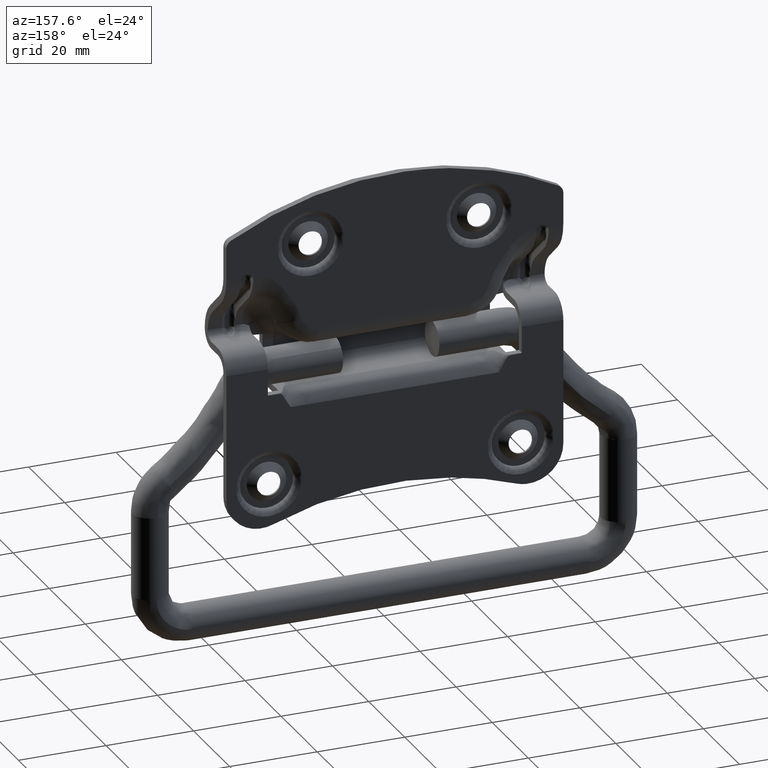
[diagram: clean part render]
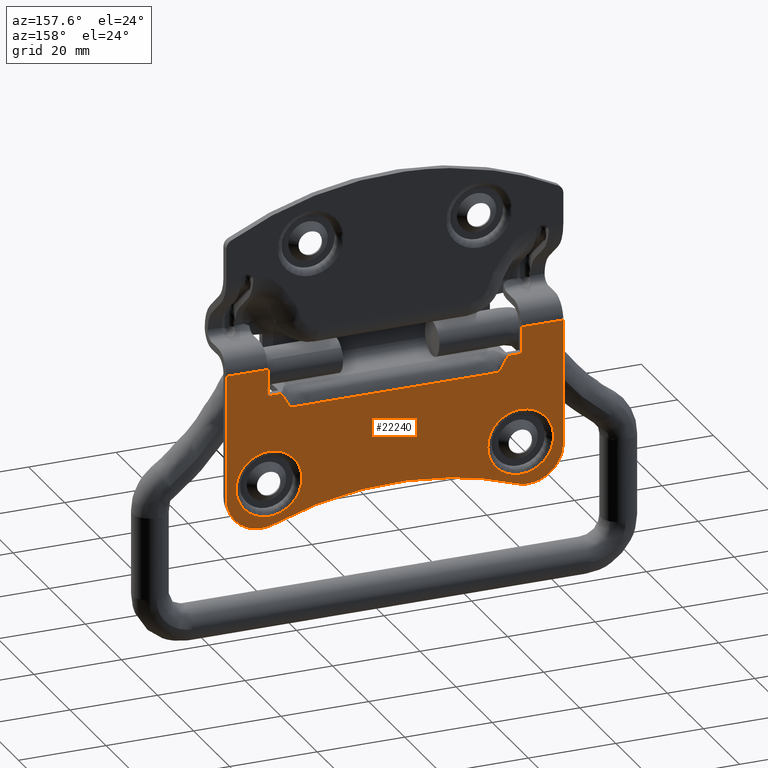
[diagram: same view with one face highlighted and labeled with its STEP entity id]
A machine part, auxiliary view. The second image highlights one B-rep face of the part: STEP entity #22240.
In plain terms, the highlighted face is a freeform B-spline surface patch.
Its self-contained STEP definition (entity closure, byte-faithful):
#4261=CARTESIAN_POINT('',(-28.750000000000000,6.0,-32.000029999973449));
#4262=VERTEX_POINT('',#4261);
#4276=CARTESIAN_POINT('',(-36.231761525775703,5.999999999999808,-23.977030684949021));
#4277=VERTEX_POINT('',#4276);
#4278=CARTESIAN_POINT('',(-36.231761525775703,5.999999999999808,-23.977030684949021));
#4279=CARTESIAN_POINT('',(-36.263082759697852,5.999999999999825,-24.424527059326810));
#4280=CARTESIAN_POINT('',(-36.244445821056559,5.999999999999869,-25.357330128161710));
#4281=CARTESIAN_POINT('',(-35.941974974816709,5.999999999999907,-26.806906684699861));
#4282=CARTESIAN_POINT('',(-35.336866421985427,5.999999999999979,-28.195796853410069));
#4283=CARTESIAN_POINT('',(-34.462777312640590,5.999999999999957,-29.430729025844521));
#4284=CARTESIAN_POINT('',(-33.275813230109883,6.000000000000033,-30.565028134264580));
#4285=CARTESIAN_POINT('',(-31.910390252663319,6.000000000000096,-31.368544313479031));
#4286=CARTESIAN_POINT('',(-30.320033566989530,5.999999999999976,-31.884849359418549));
#4287=CARTESIAN_POINT('',(-29.326775914187500,6.000000000000078,-32.000146859764207));
#4288=CARTESIAN_POINT('',(-28.750000000000000,6.0,-32.000029999973449));
#4289=B_SPLINE_CURVE_WITH_KNOTS('',3,(#4278,#4279,#4280,#4281,#4282,#4283,#4284,#4285,#4286,#4287,#4288),.UNSPECIFIED.,.F.,.U.,(4,1,1,1,1,1,1,1,4),(0.000000218852133,1.345783324052526,2.787739642078753,4.421938080797934,5.863874082181320,7.305799456925008,9.324512484175186,10.574197937775139,12.304508785203801),.UNSPECIFIED.);
#4290=EDGE_CURVE('',#4277,#4262,#4289,.T.);
#4344=CARTESIAN_POINT('',(-28.750000000000000,6.0,-17.000030000026751));
#4345=VERTEX_POINT('',#4344);
#4346=CARTESIAN_POINT('',(-28.750000000000000,6.0,-17.000030000026751));
#4347=CARTESIAN_POINT('',(-29.336347993741541,6.000000000000011,-16.999881083610958));
#4348=CARTESIAN_POINT('',(-30.274401195437630,6.000000000000023,-17.110645771171079));
#4349=CARTESIAN_POINT('',(-31.620014099196950,6.000000000000033,-17.534137053884159));
#4350=CARTESIAN_POINT('',(-32.986013161273263,6.000000000000019,-18.226042704927181));
#4351=CARTESIAN_POINT('',(-34.317965261099353,6.000000000000015,-19.356236792104720));
#4352=CARTESIAN_POINT('',(-35.219964065831448,5.999999999999941,-20.633273218265860));
#4353=CARTESIAN_POINT('',(-35.927991547618277,5.999999999999909,-22.117656679155729));
#4354=CARTESIAN_POINT('',(-36.177030175980221,5.999999999999798,-23.187302018356210));
#4355=CARTESIAN_POINT('',(-36.231761525775703,5.999999999999808,-23.977030684949021));
#4356=B_SPLINE_CURVE_WITH_KNOTS('',3,(#4346,#4347,#4348,#4349,#4350,#4351,#4352,#4353,#4354,#4355),.UNSPECIFIED.,.F.,.U.,(4,1,1,1,1,1,1,4),(0.000000173651824,1.759002009603417,2.814412123837954,4.221618650322420,6.332412982515165,8.003467889978049,8.882992041034262,11.257639861299900),.UNSPECIFIED.);
#4357=EDGE_CURVE('',#4345,#4277,#4356,.T.);
#4646=CARTESIAN_POINT('',(36.247651418014613,6.0,-24.688505716384871));
#4647=VERTEX_POINT('',#4646);
#4658=CARTESIAN_POINT('',(28.750019999999999,6.0,-32.000030000000002));
#4659=VERTEX_POINT('',#4658);
#4660=CARTESIAN_POINT('',(28.750019999999999,6.0,-32.000030000000002));
#4661=CARTESIAN_POINT('',(29.595377844100600,6.000000000000012,-32.000539120415873));
#4662=CARTESIAN_POINT('',(30.893127554381682,5.999999999999995,-31.778247069367321));
#4663=CARTESIAN_POINT('',(32.354255267488732,6.000000000000005,-31.110115845464779));
#4664=CARTESIAN_POINT('',(33.341124230766347,5.999999999999979,-30.464133472098659));
#4665=CARTESIAN_POINT('',(34.248596106821260,6.000000000000042,-29.660954408055819));
#4666=CARTESIAN_POINT('',(35.147120984265030,5.999999999999965,-28.515484698787390));
#4667=CARTESIAN_POINT('',(35.969378192812073,6.000000000000028,-26.855515643156050));
#4668=CARTESIAN_POINT('',(36.227640728038068,6.000000000000012,-25.503419561167181));
#4669=CARTESIAN_POINT('',(36.247651418014613,6.0,-24.688505716384871));
#4670=B_SPLINE_CURVE_WITH_KNOTS('',3,(#4660,#4661,#4662,#4663,#4664,#4665,#4666,#4667,#4668,#4669),.UNSPECIFIED.,.F.,.U.,(4,1,1,1,1,1,1,4),(0.000000187617758,2.535863842113862,3.894392608118473,4.800046047331625,6.067955246704566,7.517037633210008,9.147248327258165,11.592547319279671),.UNSPECIFIED.);
#4671=EDGE_CURVE('',#4659,#4647,#4670,.T.);
#4673=CARTESIAN_POINT('',(21.252388581985389,6.0,-24.311554283615120));
#4674=VERTEX_POINT('',#4673);
#4675=CARTESIAN_POINT('',(21.252388581985389,6.0,-24.311554283615120));
#4676=CARTESIAN_POINT('',(21.233242492185230,5.999999999999995,-25.059440484748411));
#4677=CARTESIAN_POINT('',(21.386447104039028,6.0,-26.279107687934669));
#4678=CARTESIAN_POINT('',(21.994124621527462,5.999999999999994,-27.856733593156960));
#4679=CARTESIAN_POINT('',(22.736036685185571,5.999999999999992,-29.054365045424870));
#4680=CARTESIAN_POINT('',(23.603134171890169,6.000000000000032,-30.000769226812189));
#4681=CARTESIAN_POINT('',(24.683157625516110,5.999999999999978,-30.851319776623381));
#4682=CARTESIAN_POINT('',(25.931057156539939,6.000000000000009,-31.511004428271651));
#4683=CARTESIAN_POINT('',(27.378525404138639,6.000000000000010,-31.918217816820139));
#4684=CARTESIAN_POINT('',(28.313637917872569,6.000000000000004,-32.000060157990681));
#4685=CARTESIAN_POINT('',(28.750019999999999,6.0,-32.000030000000002));
#4686=B_SPLINE_CURVE_WITH_KNOTS('',3,(#4675,#4676,#4677,#4678,#4679,#4680,#4681,#4682,#4683,#4684,#4685),.UNSPECIFIED.,.F.,.U.,(4,1,1,1,1,1,1,1,4),(0.000000205011037,2.244275398807469,3.646979510950663,5.049700503621686,6.452287151815727,7.480933202780568,9.164186246023647,10.660387728751660,11.969545536098581),.UNSPECIFIED.);
#4687=EDGE_CURVE('',#4674,#4659,#4686,.T.);
#4741=CARTESIAN_POINT('',(28.750019999999999,6.0,-17.000029999999999));
#4742=VERTEX_POINT('',#4741);
#4743=CARTESIAN_POINT('',(28.750019999999999,6.0,-17.000029999999999));
#4744=CARTESIAN_POINT('',(27.904680488305271,6.000000000000001,-16.999471965923441));
#4745=CARTESIAN_POINT('',(26.395576473500320,6.000000000000008,-17.257979314535039));
#4746=CARTESIAN_POINT('',(24.577246155610720,5.999999999999990,-18.183937517897618));
#4747=CARTESIAN_POINT('',(23.122739582745229,6.000000000000021,-19.425004771998239));
#4748=CARTESIAN_POINT('',(22.152161033645040,5.999999999999998,-20.793554782625179));
#4749=CARTESIAN_POINT('',(21.454180527788889,5.999999999999988,-22.504884478811441));
#4750=CARTESIAN_POINT('',(21.269556444782239,6.000000000000013,-23.617397746376810));
#4751=CARTESIAN_POINT('',(21.252388581985389,6.0,-24.311554283615120));
#4752=B_SPLINE_CURVE_WITH_KNOTS('',3,(#4743,#4744,#4745,#4746,#4747,#4748,#4749,#4750,#4751),.UNSPECIFIED.,.F.,.U.,(4,1,1,1,1,1,4),(0.000000187613782,2.535863842111125,4.528349309333586,6.067955246704117,8.241572758009664,9.509530786447426,11.592547319279680),.UNSPECIFIED.);
#4753=EDGE_CURVE('',#4742,#4674,#4752,.T.);
#4755=CARTESIAN_POINT('',(36.247651418014613,6.0,-24.688505716384871));
#4756=CARTESIAN_POINT('',(36.267657639263582,6.000000000000005,-23.909458083305509));
#4757=CARTESIAN_POINT('',(36.086008125182907,5.999999999999989,-22.533192962467009));
#4758=CARTESIAN_POINT('',(35.418039547706947,6.000000000000011,-20.975310721411361));
#4759=CARTESIAN_POINT('',(34.658217058007921,5.999999999999979,-19.830306976029650));
#4760=CARTESIAN_POINT('',(33.812340432199562,6.000000000000047,-18.906912154454581));
#4761=CARTESIAN_POINT('',(32.734243513355857,5.999999999999861,-18.100711765384808));
#4762=CARTESIAN_POINT('',(31.645473280507399,6.000000000000117,-17.551030762049539));
#4763=CARTESIAN_POINT('',(30.339634463691290,5.999999999999901,-17.121247914412908));
#4764=CARTESIAN_POINT('',(29.373448867204150,5.999999999999900,-16.999848210107750));
#4765=CARTESIAN_POINT('',(28.750019999999999,6.0,-17.000029999999999));
#4766=B_SPLINE_CURVE_WITH_KNOTS('',3,(#4755,#4756,#4757,#4758,#4759,#4760,#4761,#4762,#4763,#4764,#4765),.UNSPECIFIED.,.F.,.U.,(4,1,1,1,1,1,1,1,4),(0.000000205018226,2.337798783234126,4.114535634555417,5.049700503625429,6.452287151818477,7.855003900158999,9.070672761463479,10.099314503404459,11.969545536098551),.UNSPECIFIED.);
#4767=EDGE_CURVE('',#4647,#4742,#4766,.T.);
#12750=CARTESIAN_POINT('',(-21.249980000000949,6.0,-24.500026221275519));
#12751=VERTEX_POINT('',#12750);
#12752=CARTESIAN_POINT('',(-21.249980000000949,6.0,-24.500026221275519));
#12753=CARTESIAN_POINT('',(-21.249425796568659,6.000000000000008,-23.640908860642391));
#12754=CARTESIAN_POINT('',(-21.479181277843011,5.999999999999994,-22.322126353500028));
#12755=CARTESIAN_POINT('',(-22.272508720764549,6.000000000000002,-20.618274436180830));
#12756=CARTESIAN_POINT('',(-23.136670876564320,6.000000000000027,-19.453010573939299));
#12757=CARTESIAN_POINT('',(-24.163475382440009,6.000000000000029,-18.522536065310561));
#12758=CARTESIAN_POINT('',(-25.432518780511991,5.999999999999955,-17.707645107643270));
#12759=CARTESIAN_POINT('',(-26.970579584150990,5.999999999999989,-17.136076447010499));
#12760=CARTESIAN_POINT('',(-28.197776638650680,6.000000000000015,-16.999948190131491));
#12761=CARTESIAN_POINT('',(-28.750000000000000,6.0,-17.000030000026751));
#12762=B_SPLINE_CURVE_WITH_KNOTS('',3,(#12752,#12753,#12754,#12755,#12756,#12757,#12758,#12759,#12760,#12761),.UNSPECIFIED.,.F.,.U.,(4,1,1,1,1,1,1,4),(0.000000200217093,2.577097102431605,3.957716069159019,5.614427927751733,6.902956634403551,8.099471567823155,10.124373008234270,11.781055514205850),.UNSPECIFIED.);
#12763=EDGE_CURVE('',#12751,#4345,#12762,.T.);
#12765=CARTESIAN_POINT('',(-28.750000000000000,6.0,-32.000029999973449));
#12766=CARTESIAN_POINT('',(-28.197763598254639,6.000000000000007,-32.000143166057292));
#12767=CARTESIAN_POINT('',(-27.308109188962948,5.999999999999979,-31.901283507728699));
#12768=CARTESIAN_POINT('',(-25.981518579651890,6.000000000000006,-31.507741190272700));
#12769=CARTESIAN_POINT('',(-24.623880871657668,6.000000000000009,-30.845387791517130));
#12770=CARTESIAN_POINT('',(-23.211879170594401,5.999999999999965,-29.686559440366540));
#12771=CARTESIAN_POINT('',(-22.061876194771489,6.000000000000057,-28.074919229214579));
#12772=CARTESIAN_POINT('',(-21.393696856048049,5.999999999999941,-26.310078375038021));
#12773=CARTESIAN_POINT('',(-21.249882688572139,6.000000000000036,-25.082946572765039));
#12774=CARTESIAN_POINT('',(-21.249980000000949,6.0,-24.500026221275519));
#12775=B_SPLINE_CURVE_WITH_KNOTS('',3,(#12765,#12766,#12767,#12768,#12769,#12770,#12771,#12772,#12773,#12774),.UNSPECIFIED.,.F.,.U.,(4,1,1,1,1,1,1,4),(0.000000198906942,1.656686601683164,2.669144442584553,4.141780964994140,6.166629071708793,8.099474497975033,10.032313522556761,11.781059773727231),.UNSPECIFIED.);
#12776=EDGE_CURVE('',#4262,#12751,#12775,.T.);
#12826=CARTESIAN_POINT('',(-38.500020000000013,6.0,-26.500002749313250));
#12827=VERTEX_POINT('',#12826);
#12833=CARTESIAN_POINT('',(-27.727289090909100,6.0,-34.004132499375700));
#12834=VERTEX_POINT('',#12833);
#12835=CARTESIAN_POINT('',(-38.500020000000013,6.0,-26.500002749313250));
#12836=CARTESIAN_POINT('',(-38.500527420852940,5.999999999999993,-27.342145161482119));
#12837=CARTESIAN_POINT('',(-38.314674832071418,6.000000000000017,-28.504689306252541));
#12838=CARTESIAN_POINT('',(-37.739372919681678,5.999999999999985,-29.961950639822341));
#12839=CARTESIAN_POINT('',(-37.149153438087332,6.000000000000036,-31.014087228298809));
#12840=CARTESIAN_POINT('',(-36.241581277502888,5.999999999999974,-32.144195982849872));
#12841=CARTESIAN_POINT('',(-35.068370748433694,6.000000000000004,-33.129680058612841));
#12842=CARTESIAN_POINT('',(-33.833839828174924,5.999999999999996,-33.809109451221317));
#12843=CARTESIAN_POINT('',(-32.472367455969163,6.000000000000008,-34.298914376921289));
#12844=CARTESIAN_POINT('',(-31.158735119207360,5.999999999999996,-34.517433806938470));
#12845=CARTESIAN_POINT('',(-29.470897869406169,6.000000000000001,-34.491055071588271));
#12846=CARTESIAN_POINT('',(-28.404251248346711,6.000000000000008,-34.254556372365592));
#12847=CARTESIAN_POINT('',(-27.727289090909100,6.0,-34.004132499375700));
#12848=B_SPLINE_CURVE_WITH_KNOTS('',3,(#12835,#12836,#12837,#12838,#12839,#12840,#12841,#12842,#12843,#12844,#12845,#12846,#12847),.UNSPECIFIED.,.F.,.U.,(4,1,1,1,1,1,1,1,1,1,4),(0.000000235993637,2.526206468395088,3.488607522378587,4.691587421873129,6.135187083194786,7.819248272761627,9.262804219189018,10.345501862483649,12.149993554162380,13.232690039245179,15.397993868483709),.UNSPECIFIED.);
#12849=EDGE_CURVE('',#12827,#12834,#12848,.T.);
#12892=CARTESIAN_POINT('',(27.727292727272751,6.0,-34.004119063240303));
#12893=VERTEX_POINT('',#12892);
#12899=CARTESIAN_POINT('',(38.500020000000013,6.0,-26.499987969564302));
#12900=VERTEX_POINT('',#12899);
#12901=CARTESIAN_POINT('',(27.727292727272751,6.0,-34.004119063240303));
#12902=CARTESIAN_POINT('',(28.329049007024420,5.999999999999992,-34.226620268661691));
#12903=CARTESIAN_POINT('',(29.468566344313292,6.000000000000012,-34.497570978553270));
#12904=CARTESIAN_POINT('',(31.241148097676241,5.999999999999990,-34.525253481561080));
#12905=CARTESIAN_POINT('',(32.745578417572773,6.000000000000007,-34.228258467578861));
#12906=CARTESIAN_POINT('',(34.274933266437152,5.999999999999983,-33.612297079676217));
#12907=CARTESIAN_POINT('',(35.560044993523661,6.000000000000022,-32.773343958804212));
#12908=CARTESIAN_POINT('',(36.893616830796823,5.999999999999990,-31.430657180212808));
#12909=CARTESIAN_POINT('',(37.738988047362767,5.999999999999996,-30.048392559859789));
#12910=CARTESIAN_POINT('',(38.352406043063191,6.000000000000011,-28.304265958592211));
#12911=CARTESIAN_POINT('',(38.500300772723762,6.000000000000006,-27.221785460439879));
#12912=CARTESIAN_POINT('',(38.500020000000013,6.0,-26.499987969564302));
#12913=B_SPLINE_CURVE_WITH_KNOTS('',3,(#12901,#12902,#12903,#12904,#12905,#12906,#12907,#12908,#12909,#12910,#12911,#12912),.UNSPECIFIED.,.F.,.U.,(4,1,1,1,1,1,1,1,1,4),(0.000000235997977,1.924711348136425,3.488606644052585,5.293081316746999,6.496065459038981,8.420754961530296,9.864298383073333,12.149990495143710,13.232686707622319,15.397989991721120),.UNSPECIFIED.);
#12914=EDGE_CURVE('',#12893,#12900,#12913,.T.);
#12970=CARTESIAN_POINT('',(27.727292727272751,6.0,-34.004119063240303));
#12971=CARTESIAN_POINT('',(25.375662466934848,6.0,-33.135194881539398));
#12972=CARTESIAN_POINT('',(19.605485280296360,6.000000000000008,-31.306297034777231));
#12973=CARTESIAN_POINT('',(11.628426152131871,5.999999999999984,-29.742668934910942));
#12974=CARTESIAN_POINT('',(3.690081279616772,6.000000000000030,-29.038557412766760));
#12975=CARTESIAN_POINT('',(-2.804959486753288,5.999999999999943,-29.002630199051211));
#12976=CARTESIAN_POINT('',(-10.456311135482220,6.000000000000078,-29.596130607423799));
#12977=CARTESIAN_POINT('',(-18.746290048763829,6.000000000000014,-31.078709312049849));
#12978=CARTESIAN_POINT('',(-24.822348104607119,5.999999999999932,-32.930696953862501));
#12979=CARTESIAN_POINT('',(-27.727289090909100,6.0,-34.004132499375700));
#12980=B_SPLINE_CURVE_WITH_KNOTS('',3,(#12970,#12971,#12972,#12973,#12974,#12975,#12976,#12977,#12978,#12979),.UNSPECIFIED.,.F.,.U.,(4,1,1,1,1,1,1,4),(6.590987E-009,7.521103593501934,18.139176614473481,24.333051638135409,31.411705034587690,37.605581681501782,47.338814397877137,56.629597378905324),.UNSPECIFIED.);
#12981=EDGE_CURVE('',#12893,#12834,#12980,.T.);
#13156=CARTESIAN_POINT('',(38.500020000000013,6.0,1.999970000000000));
#13157=VERTEX_POINT('',#13156);
#13173=CARTESIAN_POINT('',(28.999980000000001,6.0,1.999970000000000));
#13174=VERTEX_POINT('',#13173);
#13175=CARTESIAN_POINT('',(28.999980000000001,6.0,1.999970000000000));
#13176=CARTESIAN_POINT('',(38.500020000000013,6.0,1.999970000000000));
#13177=QUASI_UNIFORM_CURVE('',1,(#13175,#13176),.UNSPECIFIED.,.F.,.U.);
#13178=EDGE_CURVE('',#13174,#13157,#13177,.T.);
#13219=CARTESIAN_POINT('',(-38.500020000000013,6.0,1.999970000000000));
#13220=VERTEX_POINT('',#13219);
#13241=CARTESIAN_POINT('',(-28.999980000000001,6.0,1.999970000000000));
#13242=VERTEX_POINT('',#13241);
#13256=CARTESIAN_POINT('',(-38.500020000000013,6.0,1.999970000000000));
#13257=CARTESIAN_POINT('',(-28.999980000000001,6.0,1.999970000000000));
#13258=QUASI_UNIFORM_CURVE('',1,(#13256,#13257),.UNSPECIFIED.,.F.,.U.);
#13259=EDGE_CURVE('',#13220,#13242,#13258,.T.);
#13320=CARTESIAN_POINT('',(28.999980000000001,6.0,-4.099999999999900));
#13321=VERTEX_POINT('',#13320);
#13332=CARTESIAN_POINT('',(-28.999980000000001,6.0,-4.099999999999900));
#13333=VERTEX_POINT('',#13332);
#13334=CARTESIAN_POINT('',(-28.999979999999979,6.0,-4.099999999999899));
#13335=CARTESIAN_POINT('',(-28.079345714285719,6.0,-4.099999999999899));
#13336=CARTESIAN_POINT('',(-27.158711428571461,6.0,-4.099999999999900));
#13337=CARTESIAN_POINT('',(-26.238077142857200,6.0,-4.099999999999900));
#13338=CARTESIAN_POINT('',(-25.317442857142900,6.0,-4.099999999999900));
#13339=CARTESIAN_POINT('',(-24.396808571428650,6.0,-7.599999999999900));
#13340=CARTESIAN_POINT('',(-23.476174285714350,6.0,-7.599999999999900));
#13341=CARTESIAN_POINT('',(-7.825391428571450,6.0,-7.599999999999900));
#13342=CARTESIAN_POINT('',(7.825391428571450,6.0,-7.599999999999900));
#13343=CARTESIAN_POINT('',(23.476174285714350,6.0,-7.599999999999900));
#13344=CARTESIAN_POINT('',(24.396808571428650,6.0,-7.599999999999900));
#13345=CARTESIAN_POINT('',(25.317442857142900,6.0,-4.099999999999900));
#13346=CARTESIAN_POINT('',(26.238077142857200,6.0,-4.099999999999900));
#13347=CARTESIAN_POINT('',(27.158711428571468,6.0,-4.099999999999900));
#13348=CARTESIAN_POINT('',(28.079345714285729,6.0,-4.099999999999900));
#13349=CARTESIAN_POINT('',(28.999979999999990,6.0,-4.099999999999900));
#13350=B_SPLINE_CURVE_WITH_KNOTS('',3,(#13334,#13335,#13336,#13337,#13338,#13339,#13340,#13341,#13342,#13343,#13344,#13345,#13346,#13347,#13348,#13349),.UNSPECIFIED.,.F.,.U.,(4,3,3,3,3,4),(0.400000000000000,0.409523809523809,0.419047619047618,0.580952380952380,0.590476190476190,0.599999999999999),.UNSPECIFIED.);
#13351=EDGE_CURVE('',#13333,#13321,#13350,.T.);
#21360=CARTESIAN_POINT('',(-28.999980000000001,6.0,-4.099999999999900));
#21361=CARTESIAN_POINT('',(-28.999980000000001,6.0,1.999970000000000));
#21362=QUASI_UNIFORM_CURVE('',1,(#21360,#21361),.UNSPECIFIED.,.F.,.U.);
#21363=EDGE_CURVE('',#13333,#13242,#21362,.T.);
#21424=CARTESIAN_POINT('',(28.999980000000001,6.0,1.999970000000000));
#21425=CARTESIAN_POINT('',(28.999980000000001,6.0,-4.099999999999900));
#21426=QUASI_UNIFORM_CURVE('',1,(#21424,#21425),.UNSPECIFIED.,.F.,.U.);
#21427=EDGE_CURVE('',#13174,#13321,#21426,.T.);
#22042=CARTESIAN_POINT('',(-38.500020000000013,6.0,-26.500002749313250));
#22043=CARTESIAN_POINT('',(-38.500020000000013,6.0,1.999970000000000));
#22044=QUASI_UNIFORM_CURVE('',1,(#22042,#22043),.UNSPECIFIED.,.F.,.U.);
#22045=EDGE_CURVE('',#12827,#13220,#22044,.T.);
#22073=CARTESIAN_POINT('',(38.500020000000013,6.0,-26.499987969564302));
#22074=CARTESIAN_POINT('',(38.500020000000013,6.0,1.999970000000000));
#22075=QUASI_UNIFORM_CURVE('',1,(#22073,#22074),.UNSPECIFIED.,.F.,.U.);
#22076=EDGE_CURVE('',#12900,#13157,#22075,.T.);
#22211=CARTESIAN_POINT('',(-42.346170850839478,6.0,3.822953650509271));
#22212=CARTESIAN_POINT('',(-42.346170850839478,6.0,-36.319185224924077));
#22213=CARTESIAN_POINT('',(42.346168097103458,6.0,3.822953650509271));
#22214=CARTESIAN_POINT('',(42.346168097103458,6.0,-36.319185224924077));
#22215=B_SPLINE_SURFACE_WITH_KNOTS('',1,1,((#22211,#22213),(#22212,#22214)),.UNSPECIFIED.,.F.,.F.,.U.,(2,2),(2,2),(0.0,40.142138875433353),(0.0,84.692338947942943),.UNSPECIFIED.);
#22216=ORIENTED_EDGE('',*,*,#22076,.F.);
#22217=ORIENTED_EDGE('',*,*,#12914,.F.);
#22218=ORIENTED_EDGE('',*,*,#12981,.T.);
#22219=ORIENTED_EDGE('',*,*,#12849,.F.);
#22220=ORIENTED_EDGE('',*,*,#22045,.T.);
#22221=ORIENTED_EDGE('',*,*,#13259,.T.);
#22222=ORIENTED_EDGE('',*,*,#21363,.F.);
#22223=ORIENTED_EDGE('',*,*,#13351,.T.);
#22224=ORIENTED_EDGE('',*,*,#21427,.F.);
#22225=ORIENTED_EDGE('',*,*,#13178,.T.);
#22226=EDGE_LOOP('',(#22216,#22217,#22218,#22219,#22220,#22221,#22222,#22223,#22224,#22225));
#22227=FACE_OUTER_BOUND('',#22226,.T.);
#22228=ORIENTED_EDGE('',*,*,#4671,.T.);
#22229=ORIENTED_EDGE('',*,*,#4767,.T.);
#22230=ORIENTED_EDGE('',*,*,#4753,.T.);
#22231=ORIENTED_EDGE('',*,*,#4687,.T.);
#22232=EDGE_LOOP('',(#22228,#22229,#22230,#22231));
#22233=FACE_BOUND('',#22232,.T.);
#22234=ORIENTED_EDGE('',*,*,#4357,.T.);
#22235=ORIENTED_EDGE('',*,*,#4290,.T.);
#22236=ORIENTED_EDGE('',*,*,#12776,.T.);
#22237=ORIENTED_EDGE('',*,*,#12763,.T.);
#22238=EDGE_LOOP('',(#22234,#22235,#22236,#22237));
#22239=FACE_BOUND('',#22238,.T.);
#22240=ADVANCED_FACE('',(#22227,#22233,#22239),#22215,.F.);